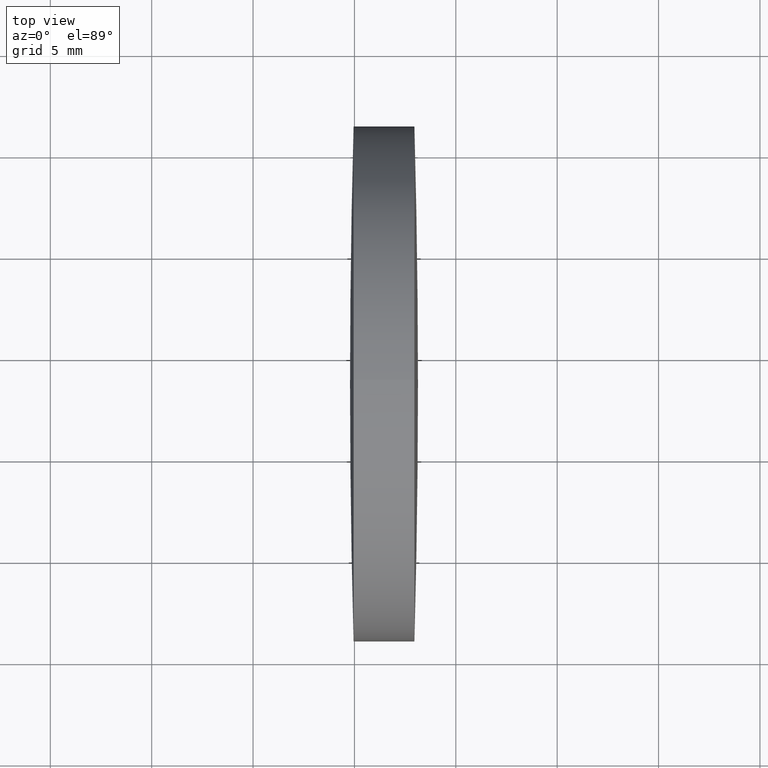
[diagram: clean part render]
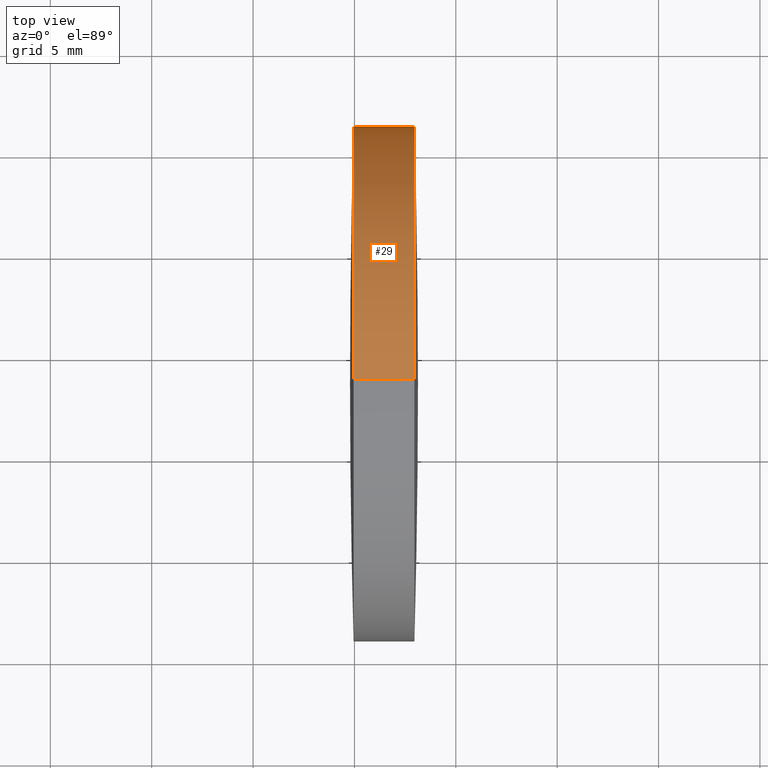
[diagram: same view with one face highlighted and labeled with its STEP entity id]
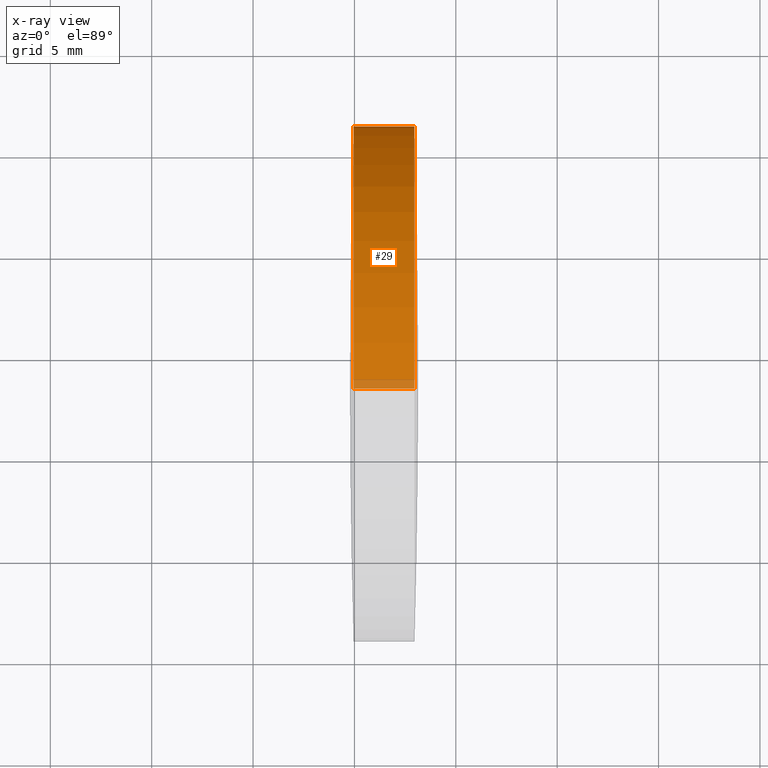
[diagram: x-ray of the same camera — body ghosted, the highlighted face saturated]
A machine part, top view. The second image highlights one B-rep face of the part: STEP entity #29.
The next image is the same camera in x-ray: the body ghosted, the highlighted face saturated — about 3% of this face is hidden behind the body in this view.
In plain terms, the highlighted cylindrical surface (partial cylindrical patch) has radius 12.7 mm, axis along (-1, -0, -0).
Its self-contained STEP definition (entity closure, byte-faithful):
#2 = CARTESIAN_POINT ( 'NONE',  ( 83.37198105152671700, 48.61611302318477400, 12.69999999999982000 ) ) ;
#5 = DIRECTION ( 'NONE',  ( -1.000000000000000000, -0.0000000000000000000, -0.0000000000000000000 ) ) ;
#10 = VERTEX_POINT ( 'NONE', #165 ) ;
#11 = LINE ( 'NONE', #254, #153 ) ;
#29 = ADVANCED_FACE ( 'NONE', ( #144 ), #197, .T. ) ;
#39 = CARTESIAN_POINT ( 'NONE',  ( 87.95817263180538200, 48.61611302318477400, 12.69999999999998900 ) ) ;
#49 = ORIENTED_EDGE ( 'NONE', *, *, #283, .T. ) ;
#54 = DIRECTION ( 'NONE',  ( 0.0000000000000000000, 0.0000000000000000000, 1.000000000000000000 ) ) ;
#56 = AXIS2_PLACEMENT_3D ( 'NONE', #163, #166, #54 ) ;
#64 = DIRECTION ( 'NONE',  ( 0.0000000000000000000, 0.0000000000000000000, 1.000000000000000000 ) ) ;
#69 = ORIENTED_EDGE ( 'NONE', *, *, #70, .F. ) ;
#70 = EDGE_CURVE ( 'NONE', #10, #151, #131, .T. ) ;
#75 = ORIENTED_EDGE ( 'NONE', *, *, #202, .T. ) ;
#87 = DIRECTION ( 'NONE',  ( -1.000000000000000000, -0.0000000000000000000, -0.0000000000000000000 ) ) ;
#95 = CARTESIAN_POINT ( 'NONE',  ( 87.95817263180538200, 48.61611302318477400, -12.69999999999998900 ) ) ;
#99 = CARTESIAN_POINT ( 'NONE',  ( 87.95817263180538200, 48.61611302318477400, 0.0000000000000000000 ) ) ;
#121 = ORIENTED_EDGE ( 'NONE', *, *, #301, .F. ) ;
#123 = LINE ( 'NONE', #2, #319 ) ;
#127 = DIRECTION ( 'NONE',  ( -1.000000000000000000, -0.0000000000000000000, -0.0000000000000000000 ) ) ;
#130 = DIRECTION ( 'NONE',  ( -1.000000000000000000, -0.0000000000000000000, -0.0000000000000000000 ) ) ;
#131 = CIRCLE ( 'NONE', #338, 12.69999999999964900 ) ;
#144 = FACE_OUTER_BOUND ( 'NONE', #160, .T. ) ;
#145 = DIRECTION ( 'NONE',  ( 0.0000000000000000000, 0.0000000000000000000, 1.000000000000000000 ) ) ;
#151 = VERTEX_POINT ( 'NONE', #296 ) ;
#153 = VECTOR ( 'NONE', #127, 1000.000000000000000 ) ;
#160 = EDGE_LOOP ( 'NONE', ( #75, #49, #220, #69, #121, #260 ) ) ;
#163 = CARTESIAN_POINT ( 'NONE',  ( 83.37198105152671700, 48.61611302318477400, 0.0000000000000000000 ) ) ;
#165 = CARTESIAN_POINT ( 'NONE',  ( 84.95821491751965500, 48.61611302318477400, 12.69999999999964900 ) ) ;
#166 = DIRECTION ( 'NONE',  ( -1.000000000000000000, -0.0000000000000000000, -0.0000000000000000000 ) ) ;
#170 = CIRCLE ( 'NONE', #250, 12.69999999999964900 ) ;
#171 = DIRECTION ( 'NONE',  ( -1.000000000000000000, -0.0000000000000000000, -0.0000000000000000000 ) ) ;
#173 = CARTESIAN_POINT ( 'NONE',  ( 84.95821491751965500, 48.61611302318477400, -12.69999999999964900 ) ) ;
#179 = AXIS2_PLACEMENT_3D ( 'NONE', #327, #171, #64 ) ;
#180 = CARTESIAN_POINT ( 'NONE',  ( 84.95821491751965500, 48.61611302318477400, 0.0000000000000000000 ) ) ;
#181 = EDGE_CURVE ( 'NONE', #317, #184, #249, .T. ) ;
#182 = AXIS2_PLACEMENT_3D ( 'NONE', #99, #257, #145 ) ;
#184 = VERTEX_POINT ( 'NONE', #324 ) ;
#196 = DIRECTION ( 'NONE',  ( 0.0000000000000000000, 0.0000000000000000000, 1.000000000000000000 ) ) ;
#197 = CYLINDRICAL_SURFACE ( 'NONE', #56, 12.69999999999982000 ) ;
#202 = EDGE_CURVE ( 'NONE', #184, #344, #304, .T. ) ;
#217 = EDGE_CURVE ( 'NONE', #151, #290, #170, .T. ) ;
#220 = ORIENTED_EDGE ( 'NONE', *, *, #217, .F. ) ;
#249 = CIRCLE ( 'NONE', #179, 12.69999999999998900 ) ;
#250 = AXIS2_PLACEMENT_3D ( 'NONE', #180, #130, #332 ) ;
#254 = CARTESIAN_POINT ( 'NONE',  ( 83.37198105152671700, 48.61611302318477400, -12.69999999999982000 ) ) ;
#257 = DIRECTION ( 'NONE',  ( -1.000000000000000000, -0.0000000000000000000, -0.0000000000000000000 ) ) ;
#260 = ORIENTED_EDGE ( 'NONE', *, *, #181, .T. ) ;
#283 = EDGE_CURVE ( 'NONE', #344, #290, #11, .T. ) ;
#290 = VERTEX_POINT ( 'NONE', #173 ) ;
#296 = CARTESIAN_POINT ( 'NONE',  ( 84.95821491751965500, 61.31611302318521700, 0.0000000000000000000 ) ) ;
#298 = CARTESIAN_POINT ( 'NONE',  ( 84.95821491751965500, 48.61611302318477400, 0.0000000000000000000 ) ) ;
#301 = EDGE_CURVE ( 'NONE', #317, #10, #123, .T. ) ;
#304 = CIRCLE ( 'NONE', #182, 12.69999999999998900 ) ;
#317 = VERTEX_POINT ( 'NONE', #39 ) ;
#319 = VECTOR ( 'NONE', #5, 1000.000000000000000 ) ;
#324 = CARTESIAN_POINT ( 'NONE',  ( 87.95817263180541100, 61.31611302318427900, 0.0000000000000000000 ) ) ;
#327 = CARTESIAN_POINT ( 'NONE',  ( 87.95817263180538200, 48.61611302318477400, 0.0000000000000000000 ) ) ;
#332 = DIRECTION ( 'NONE',  ( 0.0000000000000000000, 0.0000000000000000000, 1.000000000000000000 ) ) ;
#338 = AXIS2_PLACEMENT_3D ( 'NONE', #298, #87, #196 ) ;
#344 = VERTEX_POINT ( 'NONE', #95 ) ;